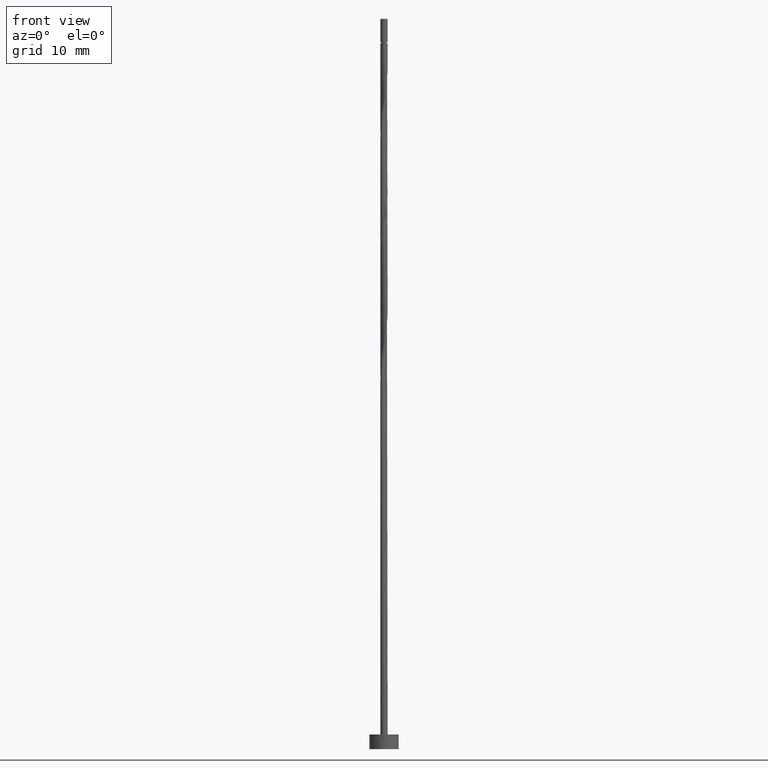
[diagram: clean part render]
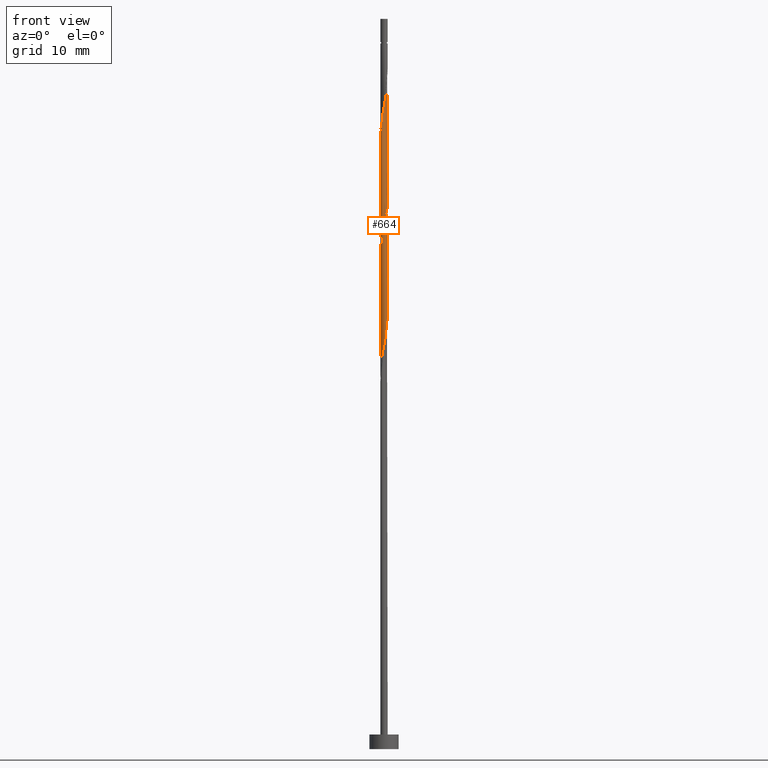
[diagram: same view with one face highlighted and labeled with its STEP entity id]
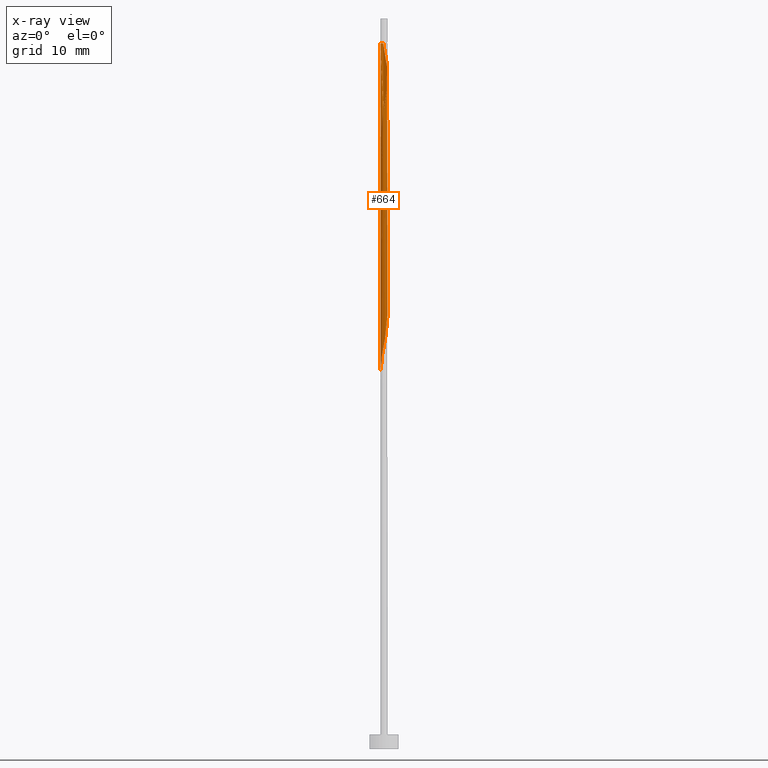
[diagram: x-ray of the same camera — body ghosted, the highlighted face saturated]
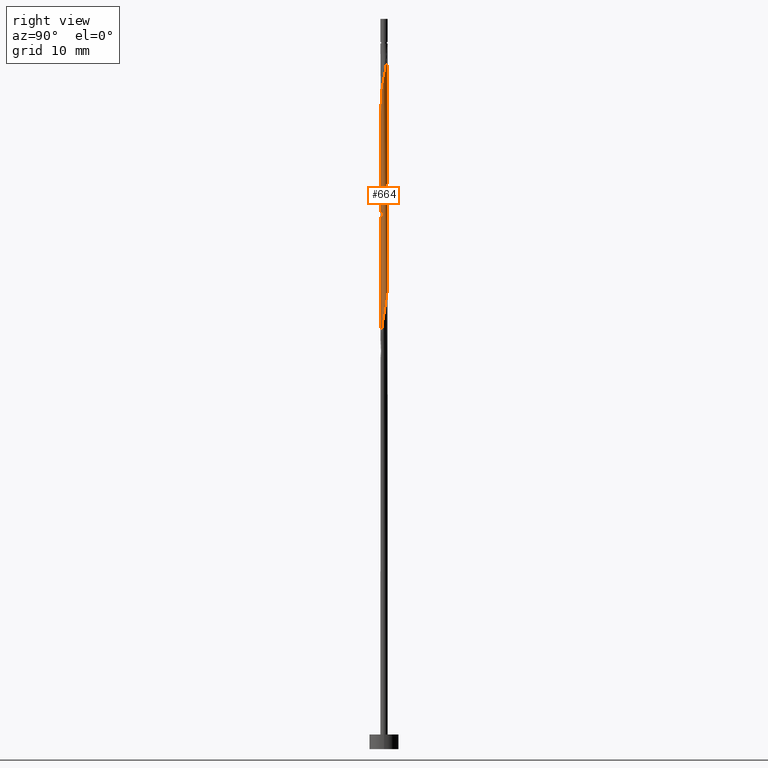
[diagram: same view with one face highlighted and labeled with its STEP entity id]
A machine part, front view. The second image highlights one B-rep face of the part: STEP entity #664.
The next image is the same camera in x-ray: the body ghosted, the highlighted face saturated — about 0% of this face is hidden behind the body in this view.
A second angle (right view) of the same face is appended — the face is thin or edge-on in the first view.
In plain terms, the highlighted cylindrical surface (bore or boss wall) has radius 0.5 mm, axis along (-0, -0, -1).
Its self-contained STEP definition (entity closure, byte-faithful):
#6 = CARTESIAN_POINT ( 'NONE',  ( 0.4460955302404529532, 0.2424285027197314035, 77.63682108089420808 ) ) ;
#23 = CARTESIAN_POINT ( 'NONE',  ( -0.5000000000000006661, -2.987793309378743813E-16, 83.58744767405360676 ) ) ;
#26 =( BOUNDED_CURVE ( )  B_SPLINE_CURVE ( 2, ( #312, #408, #1336, #1153, #414, #631, #401, #1132, #617, #42, #406, #1354, #180, #87, #611, #1063, #543, #6, #1268, #330, #755 ),
 .UNSPECIFIED., .F., .T. ) 
 B_SPLINE_CURVE_WITH_KNOTS ( ( 3, 2, 2, 2, 2, 2, 2, 2, 2, 2, 3 ),
 ( 0.4295248053855288406, 0.4305555555555555802, 0.4444444444444444198, 0.4583333333333333148, 0.4722222222222222099, 0.4861111111111111049, 0.5000000000000000000, 0.5138888888888888395, 0.5277777777777777901, 0.5416666666666666297, 0.5545248053855288406 ),
 .UNSPECIFIED. ) 
 CURVE ( )  GEOMETRIC_REPRESENTATION_ITEM ( )  RATIONAL_B_SPLINE_CURVE ( ( 0.9071930855141253636, 0.9080659294509731971, 0.9090909090909135015, 0.8952797754656478535, 0.9090909090909135015, 0.8952797754656478535, 0.9090909090909135015, 0.8952797754656478535, 0.9090909090909135015, 0.8952797754656478535, 0.9090909090909135015, 0.8952797754656478535, 0.9090909090909135015, 0.8952797754656478535, 0.9090909090909135015, 0.8952797754656478535, 0.9090909090909135015, 0.8952797754656478535, 0.9090909090909135015, 0.8963047551055882689, 0.9071930855141253636 ) ) 
 REPRESENTATION_ITEM ( '' )  );
#42 = CARTESIAN_POINT ( 'NONE',  ( -0.1612817931379151026, 0.4814156044766937925, 81.34052478459793178 ) ) ;
#47 = CARTESIAN_POINT ( 'NONE',  ( 0.3162091449211503758, -0.3972210690530862398, 57.26645071052384139 ) ) ;
#54 = CARTESIAN_POINT ( 'NONE',  ( 0.1612817931379149083, -0.4814156044766937925, 56.34052478459791757 ) ) ;
#61 = CARTESIAN_POINT ( 'NONE',  ( -0.3362772466861008169, -0.3803819322636879940, 53.56274700682015322 ) ) ;
#64 = CARTESIAN_POINT ( 'NONE',  ( 0.01309852316351413186, 0.5075443130627872446, 63.74793219200532235 ) ) ;
#77 = CARTESIAN_POINT ( 'NONE',  ( -0.1858989642578102452, -0.4724556869372144030, 71.15533959941274134 ) ) ;
#83 = CARTESIAN_POINT ( 'NONE',  ( -0.4329970070769387225, 0.2651158103430559243, 66.52570996978310802 ) ) ;
#87 = CARTESIAN_POINT ( 'NONE',  ( 0.1858989642578100787, 0.4724556869372144030, 79.48867293274605572 ) ) ;
#93 = LINE ( 'NONE', #944, #1212 ) ;
#109 = ORIENTED_EDGE ( 'NONE', *, *, #942, .F. ) ;
#115 = ORIENTED_EDGE ( 'NONE', *, *, #460, .T. ) ;
#122 = ORIENTED_EDGE ( 'NONE', *, *, #245, .T. ) ;
#137 = CARTESIAN_POINT ( 'NONE',  ( 0.3746030759990444658, 0.3311684396980709710, 93.84052478459791757 ) ) ;
#139 = CARTESIAN_POINT ( 'NONE',  ( -0.3911863884632768573, -0.3114052174917096849, 53.09978404385716999 ) ) ;
#150 = ORIENTED_EDGE ( 'NONE', *, *, #549, .F. ) ;
#156 = CARTESIAN_POINT ( 'NONE',  ( -0.5021081091789605377, -0.07523461788412827422, 68.37756182163494145 ) ) ;
#169 = CARTESIAN_POINT ( 'NONE',  ( 0.4329970070769386115, -0.2651158103430560908, 74.85904330311646504 ) ) ;
#172 = CYLINDRICAL_SURFACE ( 'NONE', #1056, 0.5000000000000000000 ) ;
#174 = CARTESIAN_POINT ( 'NONE',  ( -0.5000000000000002220, 0.000000000000000000, 96.61830256237568904 ) ) ;
#176 = CARTESIAN_POINT ( 'NONE',  ( -0.4998335745014880205, 0.01289952716443872570, 67.91459885867199375 ) ) ;
#180 = CARTESIAN_POINT ( 'NONE',  ( 0.09949874371066221024, 0.4900000000000007683, 79.95163589570904605 ) ) ;
#199 = CARTESIAN_POINT ( 'NONE',  ( 0.000000000000000000, 0.000000000000000000, 100.0000000000000000 ) ) ;
#226 = CARTESIAN_POINT ( 'NONE',  ( 0.3746030759990442438, -0.3311684396980710265, 57.72941367348681041 ) ) ;
#245 = EDGE_CURVE ( 'NONE', #479, #1264, #1118, .T. ) ;
#260 = CARTESIAN_POINT ( 'NONE',  ( 0.4975590398240158918, 0.1010336722130056458, 92.45163589570901763 ) ) ;
#262 = VECTOR ( 'NONE', #1023, 1000.000000000000000 ) ;
#266 = CARTESIAN_POINT ( 'NONE',  ( -0.07409163498720043595, 0.4944799587697403798, 64.21089515496829847 ) ) ;
#272 = CARTESIAN_POINT ( 'NONE',  ( 0.07409163498720039431, -0.4944799587697403798, 72.54422848830159865 ) ) ;
#287 = CARTESIAN_POINT ( 'NONE',  ( -0.4460955302404528977, -0.2424285027197315701, 69.30348774756086527 ) ) ;
#291 = CARTESIAN_POINT ( 'NONE',  ( 0.000000000000000000, 0.000000000000000000, 96.61830256237568904 ) ) ;
#298 = DIRECTION ( 'NONE',  ( -1.000000000000000000, 0.000000000000000000, 0.000000000000000000 ) ) ;
#312 = CARTESIAN_POINT ( 'NONE',  ( -0.5000000000000006661, -3.435962305785552623E-16, 84.64915745069778552 ) ) ;
#324 = CARTESIAN_POINT ( 'NONE',  ( -0.5000000000000006661, -3.435962305785552623E-16, 84.64915745069778552 ) ) ;
#330 = CARTESIAN_POINT ( 'NONE',  ( 0.5000000000000002220, 0.08152718591022953265, 76.74574362973007169 ) ) ;
#355 = CARTESIAN_POINT ( 'NONE',  ( 0.4975590398240160028, -0.1010336722130058262, 59.11830256237568904 ) ) ;
#363 = CARTESIAN_POINT ( 'NONE',  ( 0.4998335745014881315, -0.01289952716443889570, 59.58126552533865805 ) ) ;
#376 = CARTESIAN_POINT ( 'NONE',  ( -0.5000000000000006661, -2.913098476644273294E-16, 51.31582411736444271 ) ) ;
#380 = CARTESIAN_POINT ( 'NONE',  ( 0.4652780234504772516, 0.1830747412780305006, 92.91459885867195112 ) ) ;
#385 = CARTESIAN_POINT ( 'NONE',  ( 0.4998335745014881315, -0.01289952716443889570, 76.24793219200532235 ) ) ;
#388 = CARTESIAN_POINT ( 'NONE',  ( 0.4741018197097064957, -0.1588315603019301303, 91.06274700682016032 ) ) ;
#394 = EDGE_CURVE ( 'NONE', #980, #1264, #615, .T. ) ;
#397 = CARTESIAN_POINT ( 'NONE',  ( -0.5000000000000006661, -2.987793309378743319E-16, 83.58744767405360676 ) ) ;
#401 = CARTESIAN_POINT ( 'NONE',  ( -0.3746030759990444658, 0.3311684396980709155, 82.72941367348677488 ) ) ;
#405 = LINE ( 'NONE', #604, #262 ) ;
#406 = CARTESIAN_POINT ( 'NONE',  ( -0.07409163498720043595, 0.4944799587697403798, 80.87756182163489882 ) ) ;
#408 = CARTESIAN_POINT ( 'NONE',  ( -0.5000000000000006661, 0.006450837166008973993, 84.61514007676541382 ) ) ;
#414 = CARTESIAN_POINT ( 'NONE',  ( -0.4652780234504771961, 0.1830747412780307504, 83.65533959941272713 ) ) ;
#449 = ORIENTED_EDGE ( 'NONE', *, *, #488, .T. ) ;
#460 = EDGE_CURVE ( 'NONE', #670, #980, #405, .T. ) ;
#479 = VERTEX_POINT ( 'NONE', #397 ) ;
#488 = EDGE_CURVE ( 'NONE', #1280, #1054, #521, .T. ) ;
#490 = CARTESIAN_POINT ( 'NONE',  ( 0.07409163498720039431, -0.4944799587697403798, 55.87756182163496277 ) ) ;
#492 = CARTESIAN_POINT ( 'NONE',  ( -0.4741018197097066622, -0.1588315603019297695, 68.84052478459793178 ) ) ;
#494 = CARTESIAN_POINT ( 'NONE',  ( 0.4460955302404527312, -0.2424285027197315423, 90.59978404385718420 ) ) ;
#496 = CARTESIAN_POINT ( 'NONE',  ( 0.3911863884632768573, 0.3114052174917096294, 61.43311737719051990 ) ) ;
#497 = VECTOR ( 'NONE', #505, 1000.000000000000000 ) ;
#505 = DIRECTION ( 'NONE',  ( -0.000000000000000000, -0.000000000000000000, -1.000000000000000000 ) ) ;
#508 = CARTESIAN_POINT ( 'NONE',  ( -0.2610881054719555450, -0.4264188096004510875, 70.69237663644975100 ) ) ;
#515 = CARTESIAN_POINT ( 'NONE',  ( -0.3746030759990444658, 0.3311684396980709155, 66.06274700682013190 ) ) ;
#521 = CIRCLE ( 'NONE', #1276, 0.5000000000000002220 ) ;
#525 = DIRECTION ( 'NONE',  ( -0.000000000000000000, -0.000000000000000000, -1.000000000000000000 ) ) ;
#543 = CARTESIAN_POINT ( 'NONE',  ( 0.3911863884632768573, 0.3114052174917096294, 78.09978404385716999 ) ) ;
#549 = EDGE_CURVE ( 'NONE', #479, #1054, #1245, .T. ) ;
#568 = CARTESIAN_POINT ( 'NONE',  ( -0.4741018197097066622, -0.1588315603019297695, 52.17385811793125328 ) ) ;
#576 = CARTESIAN_POINT ( 'NONE',  ( 0.2387454690295326698, -0.4393183367648898496, 56.80348774756087238 ) ) ;
#592 = CARTESIAN_POINT ( 'NONE',  ( -0.4652780234504771406, -0.1830747412780306671, 84.58126552533865095 ) ) ;
#597 = CARTESIAN_POINT ( 'NONE',  ( -0.4975590398240158918, -0.1010336722130057152, 84.11830256237570325 ) ) ;
#604 = CARTESIAN_POINT ( 'NONE',  ( 0.5000000000000000000, 6.123233995736766036E-17, 100.0000000000000000 ) ) ;
#607 = CARTESIAN_POINT ( 'NONE',  ( -0.09949874371066216860, -0.4900000000000007683, 71.61830256237570325 ) ) ;
#611 = CARTESIAN_POINT ( 'NONE',  ( 0.2610881054719557115, 0.4264188096004509210, 79.02570996978310802 ) ) ;
#615 =( BOUNDED_CURVE ( )  B_SPLINE_CURVE ( 2, ( #1227, #820, #385, #1131, #708, #169, #1220, #701, #1006, #1112, #272, #1117, #607, #77, #508, #920, #1234, #287, #492, #156, #176, #906, #1025, #83, #515, #928, #1315, #1213, #266, #64, #904, #793, #997, #1300, #496, #877, #909, #691, #363, #355, #1097, #1110, #226, #47, #576, #54, #490, #785, #683, #1312, #1090, #61, #139, #1180, #568, #885, #376 ),
 .UNSPECIFIED., .F., .T. ) 
 B_SPLINE_CURVE_WITH_KNOTS ( ( 3, 2, 2, 2, 2, 2, 2, 2, 2, 2, 2, 2, 2, 2, 2, 2, 2, 2, 2, 2, 2, 2, 2, 2, 2, 2, 2, 2, 3 ),
 ( 0.5545248053855288406, 0.5555555555555555802, 0.5694444444444444198, 0.5833333333333333703, 0.5972222222222222099, 0.6111111111111111605, 0.6250000000000000000, 0.6388888888888888395, 0.6527777777777777901, 0.6666666666666666297, 0.6805555555555555802, 0.6944444444444444198, 0.7083333333333333703, 0.7222222222222222099, 0.7361111111111111605, 0.7500000000000000000, 0.7638888888888888395, 0.7777777777777777901, 0.7916666666666666297, 0.8055555555555555802, 0.8194444444444444198, 0.8333333333333333703, 0.8472222222222222099, 0.8611111111111111605, 0.8750000000000000000, 0.8888888888888888395, 0.9027777777777777901, 0.9166666666666666297, 0.9295248053855291737 ),
 .UNSPECIFIED. ) 
 CURVE ( )  GEOMETRIC_REPRESENTATION_ITEM ( )  RATIONAL_B_SPLINE_CURVE ( ( 0.9071930855141253636, 0.9080659294509731971, 0.9090909090909135015, 0.8952797754656478535, 0.9090909090909135015, 0.8952797754656478535, 0.9090909090909135015, 0.8952797754656478535, 0.9090909090909135015, 0.8952797754656478535, 0.9090909090909135015, 0.8952797754656478535, 0.9090909090909135015, 0.8952797754656478535, 0.9090909090909135015, 0.8952797754656478535, 0.9090909090909135015, 0.8952797754656478535, 0.9090909090909135015, 0.8952797754656478535, 0.9090909090909135015, 0.8952797754656478535, 0.9090909090909135015, 0.8952797754656478535, 0.9090909090909135015, 0.8952797754656478535, 0.9090909090909135015, 0.8952797754656478535, 0.9090909090909135015, 0.8952797754656478535, 0.9090909090909135015, 0.8952797754656478535, 0.9090909090909135015, 0.8952797754656478535, 0.9090909090909135015, 0.8952797754656478535, 0.9090909090909135015, 0.8952797754656478535, 0.9090909090909135015, 0.8952797754656478535, 0.9090909090909135015, 0.8952797754656478535, 0.9090909090909135015, 0.8952797754656478535, 0.9090909090909135015, 0.8952797754656478535, 0.9090909090909135015, 0.8952797754656478535, 0.9090909090909135015, 0.8952797754656478535, 0.9090909090909135015, 0.8952797754656478535, 0.9090909090909135015, 0.8952797754656478535, 0.9090909090909135015, 0.8963047551055878248, 0.9071930855141259187 ) ) 
 REPRESENTATION_ITEM ( '' )  );
#617 = CARTESIAN_POINT ( 'NONE',  ( -0.2387454690295326698, 0.4393183367648898496, 81.80348774756086527 ) ) ;
#627 = DIRECTION ( 'NONE',  ( -1.000000000000000000, 0.000000000000000000, 0.000000000000000000 ) ) ;
#631 = CARTESIAN_POINT ( 'NONE',  ( -0.4329970070769387225, 0.2651158103430559243, 83.19237663644977943 ) ) ;
#637 = CARTESIAN_POINT ( 'NONE',  ( 0.5000000000000007772, 1.017717096007133693E-16, 76.31582411736444271 ) ) ;
#664 = ADVANCED_FACE ( 'NONE', ( #1156 ), #172, .T. ) ;
#670 = VERTEX_POINT ( 'NONE', #1332 ) ;
#676 = CARTESIAN_POINT ( 'NONE',  ( 0.3911863884632767463, -0.3114052174917096849, 90.13682108089420808 ) ) ;
#681 = CARTESIAN_POINT ( 'NONE',  ( 0.1858989642578099122, -0.4724556869372144585, 88.74793219200532235 ) ) ;
#683 = CARTESIAN_POINT ( 'NONE',  ( -0.09949874371066216860, -0.4900000000000007683, 54.95163589570901763 ) ) ;
#689 = CARTESIAN_POINT ( 'NONE',  ( -0.3162091449211503758, -0.3972210690530861288, 85.97015441422756510 ) ) ;
#691 = CARTESIAN_POINT ( 'NONE',  ( 0.5021081091789605377, 0.07523461788412794116, 60.04422848830161996 ) ) ;
#701 = CARTESIAN_POINT ( 'NONE',  ( 0.3162091449211503758, -0.3972210690530862398, 73.93311737719052701 ) ) ;
#705 = CARTESIAN_POINT ( 'NONE',  ( 0.3162091449211503758, 0.3972210690530861288, 94.30348774756087948 ) ) ;
#708 = CARTESIAN_POINT ( 'NONE',  ( 0.4652780234504771961, -0.1830747412780307226, 75.32200626607938432 ) ) ;
#747 = ORIENTED_EDGE ( 'NONE', *, *, #460, .F. ) ;
#755 = CARTESIAN_POINT ( 'NONE',  ( 0.5000000000000007772, 1.017717096007133693E-16, 76.31582411736444271 ) ) ;
#777 = ORIENTED_EDGE ( 'NONE', *, *, #394, .F. ) ;
#780 = VERTEX_POINT ( 'NONE', #324 ) ;
#785 = CARTESIAN_POINT ( 'NONE',  ( -0.01309852316351432094, -0.5075443130627874666, 55.41459885867198665 ) ) ;
#791 = CARTESIAN_POINT ( 'NONE',  ( -0.3746030759990445214, -0.3311684396980708045, 85.50719145126458898 ) ) ;
#793 = CARTESIAN_POINT ( 'NONE',  ( 0.1858989642578100787, 0.4724556869372144030, 62.82200626607940563 ) ) ;
#800 = CARTESIAN_POINT ( 'NONE',  ( 0.2610881054719553229, -0.4264188096004510875, 89.21089515496827005 ) ) ;
#820 = CARTESIAN_POINT ( 'NONE',  ( 0.5000000000000007772, -0.006450837166009183027, 76.28180674343208523 ) ) ;
#830 = DIRECTION ( 'NONE',  ( -0.000000000000000000, -0.000000000000000000, -1.000000000000000000 ) ) ;
#833 = EDGE_CURVE ( 'NONE', #780, #980, #26, .T. ) ;
#836 = CARTESIAN_POINT ( 'NONE',  ( -0.09949874371065778322, 0.4900000000000006573, 96.61830256237566061 ) ) ;
#842 = EDGE_LOOP ( 'NONE', ( #109, #449, #150, #122, #777, #747, #115, #1355 ) ) ;
#868 = CARTESIAN_POINT ( 'NONE',  ( -0.5000000000000006661, -0.006450837166010297587, 83.62146504798593583 ) ) ;
#877 = CARTESIAN_POINT ( 'NONE',  ( 0.4460955302404529532, 0.2424285027197314035, 60.97015441422755799 ) ) ;
#883 = CARTESIAN_POINT ( 'NONE',  ( 0.3362772466861007614, -0.3803819322636881051, 89.67385811793124617 ) ) ;
#885 = CARTESIAN_POINT ( 'NONE',  ( -0.5000000000000009992, -0.08152718591022781180, 51.74574362973006458 ) ) ;
#904 = CARTESIAN_POINT ( 'NONE',  ( 0.09949874371066221024, 0.4900000000000007683, 63.28496922904236754 ) ) ;
#906 = CARTESIAN_POINT ( 'NONE',  ( -0.4975590398240160028, 0.1010336722130057568, 67.45163589570903184 ) ) ;
#909 = CARTESIAN_POINT ( 'NONE',  ( 0.4741018197097066067, 0.1588315603019299083, 60.50719145126456766 ) ) ;
#912 = CARTESIAN_POINT ( 'NONE',  ( -0.5000000000000000000, 0.000000000000000000, 100.0000000000000000 ) ) ;
#920 = CARTESIAN_POINT ( 'NONE',  ( -0.3362772466861008169, -0.3803819322636879940, 70.22941367348683173 ) ) ;
#926 = CARTESIAN_POINT ( 'NONE',  ( -0.5000000000000006661, -2.913098476644272801E-16, 51.31582411736444271 ) ) ;
#928 = CARTESIAN_POINT ( 'NONE',  ( -0.3162091449211504313, 0.3972210690530861843, 65.59978404385718420 ) ) ;
#930 = CARTESIAN_POINT ( 'NONE',  ( 0.07409163498720082452, 0.4944799587697402687, 95.69237663644977943 ) ) ;
#942 = EDGE_CURVE ( 'NONE', #1280, #780, #93, .T. ) ;
#944 = CARTESIAN_POINT ( 'NONE',  ( -0.5000000000000000000, 0.000000000000000000, 100.0000000000000000 ) ) ;
#956 = DIRECTION ( 'NONE',  ( -0.000000000000000000, -0.000000000000000000, -1.000000000000000000 ) ) ;
#977 = CARTESIAN_POINT ( 'NONE',  ( -0.09949874371065779710, 0.4900000000000006573, 96.61830256237566061 ) ) ;
#980 = VERTEX_POINT ( 'NONE', #637 ) ;
#995 = CARTESIAN_POINT ( 'NONE',  ( 0.09949874371066205758, -0.4900000000000006573, 88.28496922904237465 ) ) ;
#997 = CARTESIAN_POINT ( 'NONE',  ( 0.2610881054719557115, 0.4264188096004509210, 62.35904330311642951 ) ) ;
#1001 = CARTESIAN_POINT ( 'NONE',  ( -0.2387454690295326420, -0.4393183367648896831, 86.43311737719049859 ) ) ;
#1006 = CARTESIAN_POINT ( 'NONE',  ( 0.2387454690295326698, -0.4393183367648898496, 73.47015441422753668 ) ) ;
#1008 = CARTESIAN_POINT ( 'NONE',  ( -0.4329970070769387780, -0.2651158103430558133, 85.04422848830165549 ) ) ;
#1023 = DIRECTION ( 'NONE',  ( -0.000000000000000000, -0.000000000000000000, -1.000000000000000000 ) ) ;
#1025 = CARTESIAN_POINT ( 'NONE',  ( -0.4652780234504771961, 0.1830747412780307504, 66.98867293274605572 ) ) ;
#1028 = CARTESIAN_POINT ( 'NONE',  ( 0.1612817931379153524, 0.4814156044766935705, 95.22941367348683173 ) ) ;
#1037 = CARTESIAN_POINT ( 'NONE',  ( -0.01309852316351411104, 0.5075443130627870225, 96.15533959941272713 ) ) ;
#1054 = VERTEX_POINT ( 'NONE', #977 ) ;
#1056 = AXIS2_PLACEMENT_3D ( 'NONE', #199, #830, #298 ) ;
#1063 = CARTESIAN_POINT ( 'NONE',  ( 0.3362772466861011500, 0.3803819322636878275, 78.56274700682013190 ) ) ;
#1090 = CARTESIAN_POINT ( 'NONE',  ( -0.2610881054719555450, -0.4264188096004510875, 54.02570996978310092 ) ) ;
#1095 = CARTESIAN_POINT ( 'NONE',  ( 0.4998335745014879095, 0.01289952716443871876, 91.98867293274605572 ) ) ;
#1097 = CARTESIAN_POINT ( 'NONE',  ( 0.4652780234504771961, -0.1830747412780307226, 58.65533959941272713 ) ) ;
#1110 = CARTESIAN_POINT ( 'NONE',  ( 0.4329970070769386115, -0.2651158103430560908, 58.19237663644977232 ) ) ;
#1112 = CARTESIAN_POINT ( 'NONE',  ( 0.1612817931379149083, -0.4814156044766937925, 73.00719145126461740 ) ) ;
#1117 = CARTESIAN_POINT ( 'NONE',  ( -0.01309852316351432094, -0.5075443130627874666, 72.08126552533867937 ) ) ;
#1118 = LINE ( 'NONE', #912, #497 ) ;
#1131 = CARTESIAN_POINT ( 'NONE',  ( 0.4975590398240160028, -0.1010336722130058262, 75.78496922904238886 ) ) ;
#1132 = CARTESIAN_POINT ( 'NONE',  ( -0.3162091449211504313, 0.3972210690530861843, 82.26645071052385561 ) ) ;
#1153 = CARTESIAN_POINT ( 'NONE',  ( -0.4975590398240160028, 0.1010336722130057568, 84.11830256237570325 ) ) ;
#1156 = FACE_OUTER_BOUND ( 'NONE', #842, .T. ) ;
#1180 = CARTESIAN_POINT ( 'NONE',  ( -0.4460955302404528977, -0.2424285027197315701, 52.63682108089421519 ) ) ;
#1200 = CARTESIAN_POINT ( 'NONE',  ( 0.01309852316351395145, -0.5075443130627870225, 87.82200626607939853 ) ) ;
#1212 = VECTOR ( 'NONE', #956, 1000.000000000000000 ) ;
#1213 = CARTESIAN_POINT ( 'NONE',  ( -0.1612817931379151026, 0.4814156044766937925, 64.67385811793126038 ) ) ;
#1217 = CARTESIAN_POINT ( 'NONE',  ( 0.4329970070769388890, 0.2651158103430554802, 93.37756182163498408 ) ) ;
#1220 = CARTESIAN_POINT ( 'NONE',  ( 0.3746030759990442438, -0.3311684396980710265, 74.39608034015346050 ) ) ;
#1224 = CARTESIAN_POINT ( 'NONE',  ( 0.5021081091789605377, -0.07523461788412863505, 91.52570996978307960 ) ) ;
#1227 = CARTESIAN_POINT ( 'NONE',  ( 0.5000000000000007772, 1.017717096007133693E-16, 76.31582411736444271 ) ) ;
#1234 = CARTESIAN_POINT ( 'NONE',  ( -0.3911863884632768573, -0.3114052174917096849, 69.76645071052382718 ) ) ;
#1237 = CARTESIAN_POINT ( 'NONE',  ( 0.2387454690295327808, 0.4393183367648896831, 94.76645071052382718 ) ) ;
#1245 =( BOUNDED_CURVE ( )  B_SPLINE_CURVE ( 2, ( #23, #868, #1284, #597, #592, #1008, #791, #689, #1001, #1324, #1298, #1200, #995, #681, #800, #883, #676, #494, #388, #1224, #1095, #260, #380, #1217, #137, #705, #1237, #1028, #930, #1037, #836 ),
 .UNSPECIFIED., .F., .T. ) 
 B_SPLINE_CURVE_WITH_KNOTS ( ( 3, 2, 2, 2, 2, 2, 2, 2, 2, 2, 2, 2, 2, 2, 2, 3 ),
 ( 0.5545248053855290626, 0.5555555555555555802, 0.5694444444444444198, 0.5833333333333332593, 0.5972222222222222099, 0.6111111111111111605, 0.6250000000000000000, 0.6388888888888888395, 0.6527777777777777901, 0.6666666666666667407, 0.6805555555555555802, 0.6944444444444444198, 0.7083333333333332593, 0.7222222222222222099, 0.7361111111111111605, 0.7500000000000000000 ),
 .UNSPECIFIED. ) 
 CURVE ( )  GEOMETRIC_REPRESENTATION_ITEM ( )  RATIONAL_B_SPLINE_CURVE ( ( 0.9071930855141250305, 0.9080659294509727530, 0.9090909090909128354, 0.8952797754656471874, 0.9090909090909128354, 0.8952797754656471874, 0.9090909090909128354, 0.8952797754656471874, 0.9090909090909128354, 0.8952797754656471874, 0.9090909090909128354, 0.8952797754656471874, 0.9090909090909128354, 0.8952797754656471874, 0.9090909090909128354, 0.8952797754656471874, 0.9090909090909128354, 0.8952797754656471874, 0.9090909090909128354, 0.8952797754656471874, 0.9090909090909128354, 0.8952797754656471874, 0.9090909090909128354, 0.8952797754656471874, 0.9090909090909128354, 0.8952797754656471874, 0.9090909090909128354, 0.8952797754656471874, 0.9090909090909128354, 0.8952797754656471874, 0.9090909090909128354 ) ) 
 REPRESENTATION_ITEM ( '' )  );
#1264 = VERTEX_POINT ( 'NONE', #926 ) ;
#1268 = CARTESIAN_POINT ( 'NONE',  ( 0.4741018197097066067, 0.1588315603019299083, 77.17385811793124617 ) ) ;
#1276 = AXIS2_PLACEMENT_3D ( 'NONE', #291, #525, #627 ) ;
#1280 = VERTEX_POINT ( 'NONE', #174 ) ;
#1284 = CARTESIAN_POINT ( 'NONE',  ( -0.4998335745014879095, -0.01289952716443868060, 83.65533959941272713 ) ) ;
#1298 = CARTESIAN_POINT ( 'NONE',  ( -0.07409163498720053309, -0.4944799587697403798, 87.35904330311642241 ) ) ;
#1300 = CARTESIAN_POINT ( 'NONE',  ( 0.3362772466861011500, 0.3803819322636878275, 61.89608034015348181 ) ) ;
#1312 = CARTESIAN_POINT ( 'NONE',  ( -0.1858989642578102452, -0.4724556869372144030, 54.48867293274608414 ) ) ;
#1315 = CARTESIAN_POINT ( 'NONE',  ( -0.2387454690295326698, 0.4393183367648898496, 65.13682108089420808 ) ) ;
#1324 = CARTESIAN_POINT ( 'NONE',  ( -0.1612817931379150194, -0.4814156044766936815, 86.89608034015350313 ) ) ;
#1332 = CARTESIAN_POINT ( 'NONE',  ( 0.5000000000000000000, 6.123233995736766036E-17, 96.61830256237568904 ) ) ;
#1336 = CARTESIAN_POINT ( 'NONE',  ( -0.4998335745014880205, 0.01289952716443872570, 84.58126552533866516 ) ) ;
#1354 = CARTESIAN_POINT ( 'NONE',  ( 0.01309852316351413186, 0.5075443130627872446, 80.41459885867197954 ) ) ;
#1355 = ORIENTED_EDGE ( 'NONE', *, *, #833, .F. ) ;